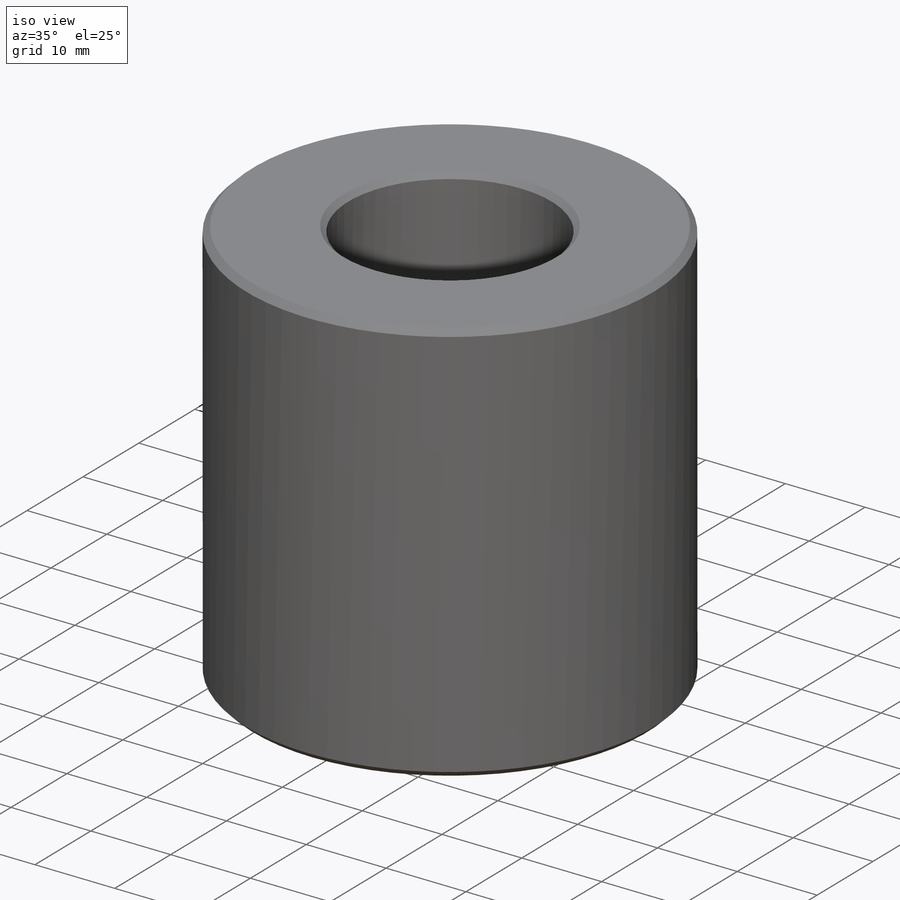
[diagram: iso view]
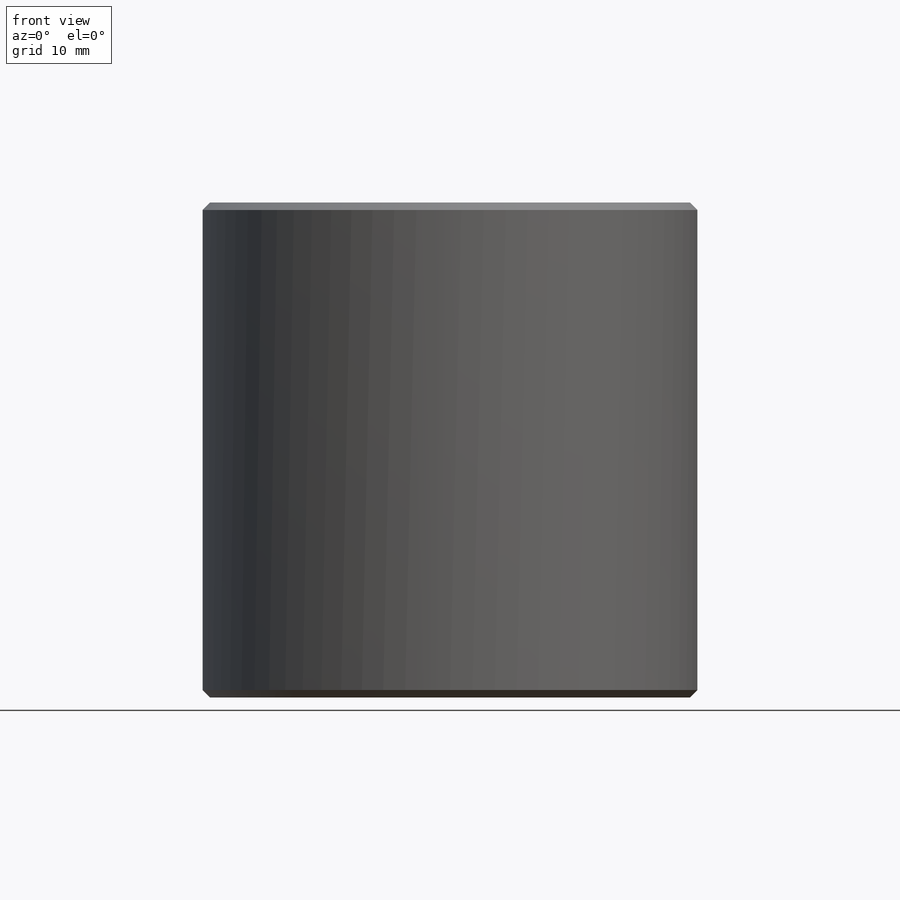
[diagram: front view]
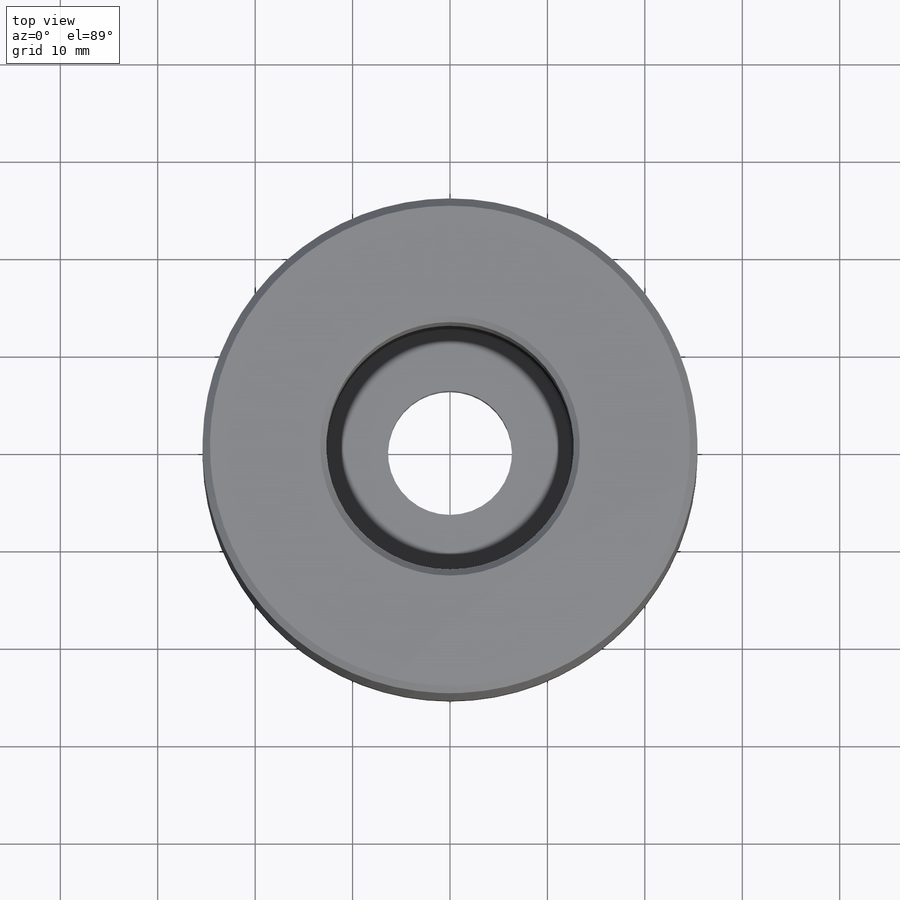
[diagram: top view]
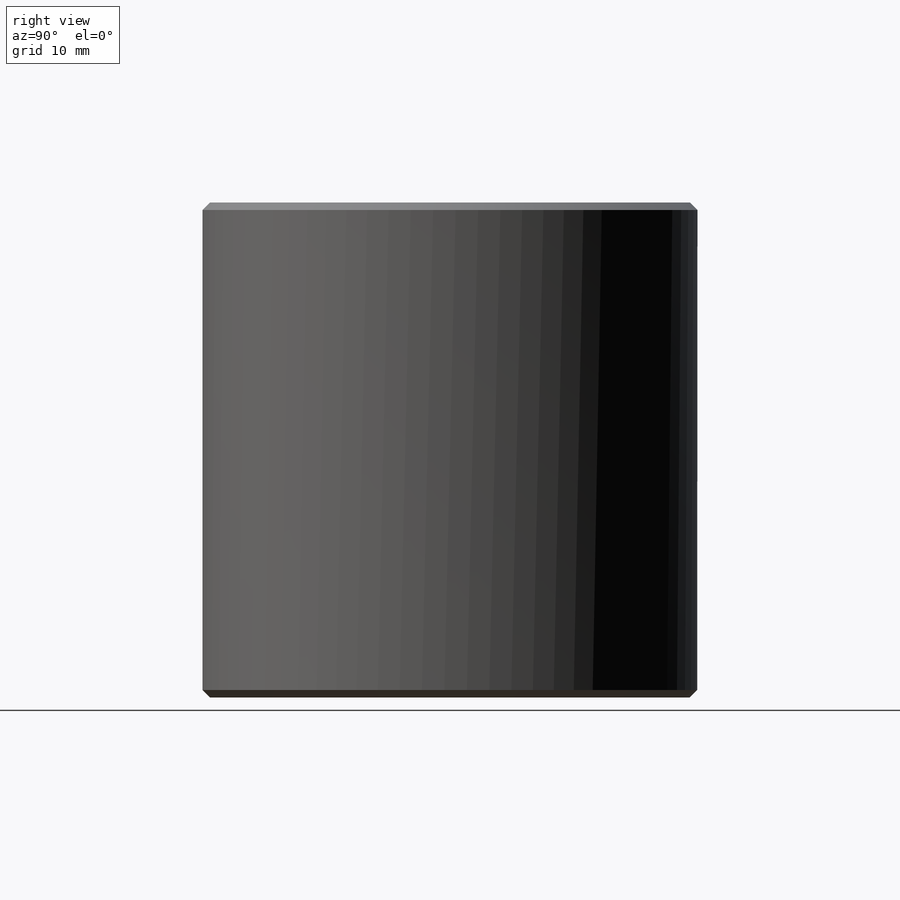
[diagram: right view]
SOLIDWORKS PART (.sldprt)
format: sldprt  version: not decoded by parser v0  size: 232,960 bytes
history: native  units: mm
features: sketch x5, chamfer x3, hole x2, material x1, extrude x1 + 1 further entry (+13 scaffold rows collapsed)
feature tree (26):
  scaffold x13  (default folders/planes/origin — collapsed)
  material  "C71500"
  "Origin"  ID=-1
  sketch  "Sketch1"  dims[D1=50.8mm]
  extrude  "Extrude1"  Depth=50.8mm
  hole  "1/2 (0.5) Diameter Hole1"  Diameter=12.7254mm Depth=50.8mm
  sketch  "Sketch3"
  sketch  "Sketch2"  dims[hole-wizard template sketch: 59 standard entries collapsed; hole parameters kept: c18.Thru Hole Dia.=12.7254mm c18.Thru Hole Depth=50.8mm]
  chamfer  "Chamfer1"  Distance=0.762mm Angle=45deg
  hole  "1 (1) Diameter Hole1"  Diameter=25.4mm Depth=42.418mm
  sketch  "Sketch5"
  sketch  "Sketch4"  dims[hole-wizard template sketch: 47 standard entries collapsed; hole parameters kept: c15.Hole Depth=42.418mm c15.D3=~14.816244mm c15.Drill Angle=180.0deg]
  chamfer  "Chamfer2"  Distance=0.254mm Angle=45deg
  chamfer  "Chamfer3"  Distance=0.635mm Angle=45deg
decode coverage: 9 of 11 modeling features carry decoded parameters; 1 rows unclassified (native names shown)
note: ~ marks probable driven/reference dimensions
note: suppression state not decoded; provenance and decode notes live in map.json
